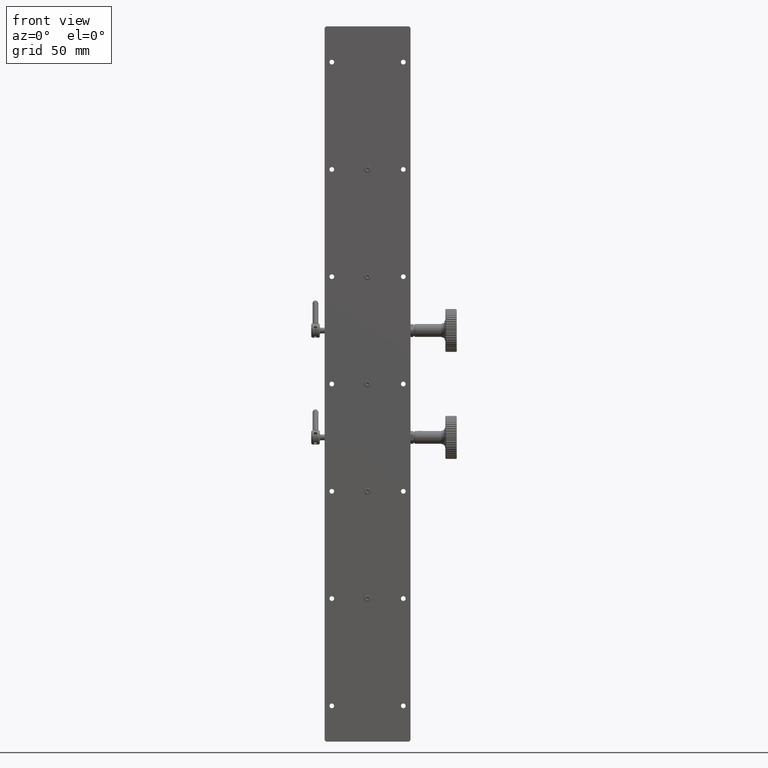
[diagram: clean part render]
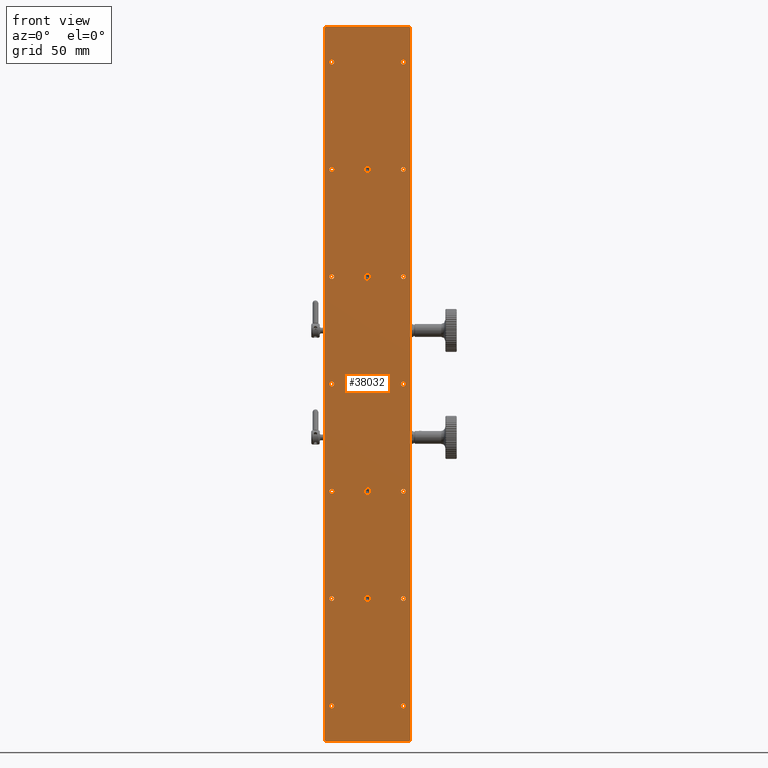
[diagram: same view with one face highlighted and labeled with its STEP entity id]
A machine part, front view. The second image highlights one B-rep face of the part: STEP entity #38032.
In plain terms, the highlighted planar face has unit normal (-0, 1, 0).
Its self-contained STEP definition (entity closure, byte-faithful):
#1663 = DIRECTION ( 'NONE',  ( -1.000000000000000000, -8.410780489584597367E-15, 0.000000000000000000 ) ) ;
#2494 = CARTESIAN_POINT ( 'NONE',  ( 37.85156960994753916, 57.10272800986749786, 413.8231807833473681 ) ) ;
#2575 = CARTESIAN_POINT ( 'NONE',  ( 34.50156960994753064, 57.10272800986749786, 512.8231807833471976 ) ) ;
#4720 = DIRECTION ( 'NONE',  ( 6.982962677686266711E-15, -1.000000000000000000, -0.000000000000000000 ) ) ;
#5114 = CIRCLE ( 'NONE', #47633, 2.500000000000002220 ) ;
#5133 = DIRECTION ( 'NONE',  ( 6.982962677686266711E-15, -1.000000000000000000, -0.000000000000000000 ) ) ;
#6536 = FACE_BOUND ( 'NONE', #180622, .T. ) ;
#7162 = CARTESIAN_POINT ( 'NONE',  ( 39.50156960994753064, 57.10272800986751207, 188.8231807833472544 ) ) ;
#7511 = DIRECTION ( 'NONE',  ( 1.000000000000000000, 8.326672684688666165E-15, 0.000000000000000000 ) ) ;
#7802 = DIRECTION ( 'NONE',  ( 6.982962677686266711E-15, -1.000000000000000000, -0.000000000000000000 ) ) ;
#8414 = CARTESIAN_POINT ( 'NONE',  ( 94.50156960994752353, 57.10272800986790998, 512.8231807833471976 ) ) ;
#8536 = CARTESIAN_POINT ( 'NONE',  ( 67.00156960994753774, 57.10272800986772523, 113.8231807833472828 ) ) ;
#8729 = VERTEX_POINT ( 'NONE', #88162 ) ;
#9557 = DIRECTION ( 'NONE',  ( 6.982962677686266711E-15, -1.000000000000000000, -0.000000000000000000 ) ) ;
#9568 = CIRCLE ( 'NONE', #51905, 2.499999999999988454 ) ;
#9812 = CARTESIAN_POINT ( 'NONE',  ( 87.85156960994756048, 57.10272800986786024, 338.8231807833472544 ) ) ;
#12876 = LINE ( 'NONE', #90626, #186220 ) ;
#13942 = DIRECTION ( 'NONE',  ( -1.000000000000000000, -6.982962677686266711E-15, 0.000000000000000000 ) ) ;
#14297 = CARTESIAN_POINT ( 'NONE',  ( 35.50156960994763011, 57.10272800986759734, 513.8231807833473113 ) ) ;
#14661 = CARTESIAN_POINT ( 'NONE',  ( 35.50156960994751643, 57.10272800986759734, 13.82318078334730060 ) ) ;
#14822 = DIRECTION ( 'NONE',  ( -1.000000000000000000, -8.410780489584597367E-15, 0.000000000000000000 ) ) ;
#14947 = LINE ( 'NONE', #167477, #19190 ) ;
#16267 = ORIENTED_EDGE ( 'NONE', *, *, #190442, .F. ) ;
#18581 = VERTEX_POINT ( 'NONE', #36961 ) ;
#19190 = VECTOR ( 'NONE', #13942, 1000.000000000000000 ) ;
#19583 = CARTESIAN_POINT ( 'NONE',  ( 67.00156960994755195, 57.10272800986772523, 338.8231807833472544 ) ) ;
#19847 = AXIS2_PLACEMENT_3D ( 'NONE', #152984, #181654, #121269 ) ;
#21101 = CARTESIAN_POINT ( 'NONE',  ( 37.85156960994754627, 57.10272800986749786, 188.8231807833472544 ) ) ;
#21535 = CARTESIAN_POINT ( 'NONE',  ( 34.50156960994753064, 57.10272800986749786, 14.82318078334733968 ) ) ;
#21704 = CARTESIAN_POINT ( 'NONE',  ( 93.50156960994743827, 57.10272800986790998, 513.8231807833473113 ) ) ;
#22867 = CARTESIAN_POINT ( 'NONE',  ( 37.85156960994753206, 57.10272800986749786, 113.8231807833472544 ) ) ;
#22869 = FACE_BOUND ( 'NONE', #81726, .T. ) ;
#22982 = VERTEX_POINT ( 'NONE', #8414 ) ;
#23298 = DIRECTION ( 'NONE',  ( 6.982962677686266711E-15, -1.000000000000000000, -0.000000000000000000 ) ) ;
#23320 = DIRECTION ( 'NONE',  ( -1.000000000000000000, -8.410780489584597367E-15, 0.000000000000000000 ) ) ;
#23882 = FACE_OUTER_BOUND ( 'NONE', #69063, .T. ) ;
#26336 = ORIENTED_EDGE ( 'NONE', *, *, #72738, .F. ) ;
#26372 = VERTEX_POINT ( 'NONE', #14661 ) ;
#29336 = ORIENTED_EDGE ( 'NONE', *, *, #82990, .F. ) ;
#31417 = CARTESIAN_POINT ( 'NONE',  ( 87.85156960994754627, 57.10272800986786024, 113.8231807833472544 ) ) ;
#32030 = DIRECTION ( 'NONE',  ( 1.000000000000000000, 8.326672684688666165E-15, 0.000000000000000000 ) ) ;
#32158 = CIRCLE ( 'NONE', #169519, 1.649999999999984812 ) ;
#32595 = CIRCLE ( 'NONE', #111031, 1.649999999999984812 ) ;
#33032 = CARTESIAN_POINT ( 'NONE',  ( 64.50156960994755195, 57.10272800986770392, 188.8231807833472544 ) ) ;
#33630 = EDGE_CURVE ( 'NONE', #121202, #8729, #127566, .T. ) ;
#34083 = EDGE_CURVE ( 'NONE', #178397, #178397, #160389, .T. ) ;
#35006 = DIRECTION ( 'NONE',  ( 6.982962677686266711E-15, -1.000000000000000000, 0.000000000000000000 ) ) ;
#35056 = VERTEX_POINT ( 'NONE', #124083 ) ;
#35862 = LINE ( 'NONE', #97251, #131454 ) ;
#35872 = ORIENTED_EDGE ( 'NONE', *, *, #159100, .F. ) ;
#36206 = CARTESIAN_POINT ( 'NONE',  ( 94.50156960994752353, 57.10272800986790998, 513.8231807833473113 ) ) ;
#36961 = CARTESIAN_POINT ( 'NONE',  ( 67.00156960994755195, 57.10272800986772523, 263.8231807833472544 ) ) ;
#38032 = ADVANCED_FACE ( 'NONE', ( #23882, #40267, #161059, #55637, #133363, #22869, #177408, #84293, #129328, #116001, #148719, #194760, #195779, #6536, #179426, #164098, #85299, #68949, #101647, #102661 ), #147699, .F. ) ;
#38984 = VERTEX_POINT ( 'NONE', #165859 ) ;
#39249 = DIRECTION ( 'NONE',  ( -6.982962677686266711E-15, 1.000000000000000000, 0.000000000000000000 ) ) ;
#39496 = CARTESIAN_POINT ( 'NONE',  ( 87.85156960994754627, 57.10272800986786024, 38.82318078334726863 ) ) ;
#40215 = CIRCLE ( 'NONE', #85922, 1.649999999999998579 ) ;
#40267 = FACE_BOUND ( 'NONE', #59314, .T. ) ;
#42006 = CIRCLE ( 'NONE', #94263, 2.500000000000002220 ) ;
#42415 = CIRCLE ( 'NONE', #114216, 1.649999999999998579 ) ;
#42525 = CARTESIAN_POINT ( 'NONE',  ( 34.50156960994753064, 57.10272800986749075, 513.8231807833473113 ) ) ;
#42845 = DIRECTION ( 'NONE',  ( 1.000000000000000000, 8.326672684688711919E-15, 0.000000000000000000 ) ) ;
#43198 = ORIENTED_EDGE ( 'NONE', *, *, #147060, .F. ) ;
#43848 = VECTOR ( 'NONE', #198429, 1000.000000000000000 ) ;
#43859 = VECTOR ( 'NONE', #137647, 1000.000000000000000 ) ;
#44269 = VERTEX_POINT ( 'NONE', #8536 ) ;
#45323 = EDGE_CURVE ( 'NONE', #26372, #95276, #12876, .T. ) ;
#46460 = VECTOR ( 'NONE', #127549, 1000.000000000000114 ) ;
#46523 = CARTESIAN_POINT ( 'NONE',  ( 89.50156960994753774, 57.10272800986787445, 113.8231807833472544 ) ) ;
#46904 = ORIENTED_EDGE ( 'NONE', *, *, #48495, .F. ) ;
#47633 = AXIS2_PLACEMENT_3D ( 'NONE', #120989, #88273, #198740 ) ;
#48495 = EDGE_CURVE ( 'NONE', #44269, #44269, #9568, .T. ) ;
#48823 = DIRECTION ( 'NONE',  ( 1.000000000000000000, 6.982962677686266711E-15, -0.000000000000000000 ) ) ;
#51008 = DIRECTION ( 'NONE',  ( 6.982962677686266711E-15, -1.000000000000000000, -0.000000000000000000 ) ) ;
#51905 = AXIS2_PLACEMENT_3D ( 'NONE', #117559, #131905, #42845 ) ;
#53347 = VERTEX_POINT ( 'NONE', #190439 ) ;
#54878 = CARTESIAN_POINT ( 'NONE',  ( 89.50156960994753774, 57.10272800986787445, 488.8231807833473113 ) ) ;
#55554 = EDGE_CURVE ( 'NONE', #182415, #182415, #42006, .T. ) ;
#55637 = FACE_BOUND ( 'NONE', #85794, .T. ) ;
#56123 = AXIS2_PLACEMENT_3D ( 'NONE', #33032, #141498, #32030 ) ;
#58905 = VERTEX_POINT ( 'NONE', #137659 ) ;
#59314 = EDGE_LOOP ( 'NONE', ( #46904 ) ) ;
#61024 = EDGE_LOOP ( 'NONE', ( #192427 ) ) ;
#61113 = ORIENTED_EDGE ( 'NONE', *, *, #33630, .F. ) ;
#61152 = EDGE_LOOP ( 'NONE', ( #182795 ) ) ;
#61909 = LINE ( 'NONE', #42525, #43859 ) ;
#62884 = DIRECTION ( 'NONE',  ( -1.000000000000000000, -8.410780489584526369E-15, 0.000000000000000000 ) ) ;
#63078 = CARTESIAN_POINT ( 'NONE',  ( 89.50156960994753774, 57.10272800986787445, 263.8231807833472544 ) ) ;
#63896 = DIRECTION ( 'NONE',  ( 6.982962677686266711E-15, -1.000000000000000000, -0.000000000000000000 ) ) ;
#64184 = ORIENTED_EDGE ( 'NONE', *, *, #87833, .F. ) ;
#64580 = ORIENTED_EDGE ( 'NONE', *, *, #167910, .F. ) ;
#66442 = AXIS2_PLACEMENT_3D ( 'NONE', #85278, #9557, #103652 ) ;
#66787 = AXIS2_PLACEMENT_3D ( 'NONE', #84253, #181400, #7511 ) ;
#67186 = CARTESIAN_POINT ( 'NONE',  ( 94.50156960994752353, 57.10272800986790998, 513.8231807833473113 ) ) ;
#67668 = VERTEX_POINT ( 'NONE', #132096 ) ;
#67938 = DIRECTION ( 'NONE',  ( -1.000000000000000000, -6.982962677686266711E-15, 0.000000000000000000 ) ) ;
#67986 = EDGE_CURVE ( 'NONE', #109652, #26372, #14947, .T. ) ;
#68949 = FACE_BOUND ( 'NONE', #115140, .T. ) ;
#68961 = EDGE_LOOP ( 'NONE', ( #73486 ) ) ;
#69063 = EDGE_LOOP ( 'NONE', ( #26336, #100357, #124024, #61113, #165581, #175777, #172084, #83488 ) ) ;
#71221 = CARTESIAN_POINT ( 'NONE',  ( 37.85156960994753916, 57.10272800986749786, 338.8231807833472544 ) ) ;
#72442 = CARTESIAN_POINT ( 'NONE',  ( 89.50156960994753774, 57.10272800986787445, 188.8231807833472544 ) ) ;
#72738 = EDGE_CURVE ( 'NONE', #35056, #109652, #121687, .T. ) ;
#73486 = ORIENTED_EDGE ( 'NONE', *, *, #121941, .F. ) ;
#73698 = ORIENTED_EDGE ( 'NONE', *, *, #55554, .F. ) ;
#74351 = EDGE_CURVE ( 'NONE', #53347, #53347, #174578, .T. ) ;
#77932 = EDGE_CURVE ( 'NONE', #67668, #67668, #191019, .T. ) ;
#81467 = DIRECTION ( 'NONE',  ( -1.000000000000000000, -8.410780489584597367E-15, 0.000000000000000000 ) ) ;
#81726 = EDGE_LOOP ( 'NONE', ( #64184 ) ) ;
#81989 = ORIENTED_EDGE ( 'NONE', *, *, #141108, .F. ) ;
#82990 = EDGE_CURVE ( 'NONE', #179159, #179159, #5114, .T. ) ;
#83488 = ORIENTED_EDGE ( 'NONE', *, *, #67986, .F. ) ;
#84131 = DIRECTION ( 'NONE',  ( -0.7071067811865474617, 0.000000000000000000, 0.7071067811865474617 ) ) ;
#84253 = CARTESIAN_POINT ( 'NONE',  ( 64.50156960994755195, 57.10272800986770392, 263.8231807833472544 ) ) ;
#84293 = FACE_BOUND ( 'NONE', #127744, .T. ) ;
#85278 = CARTESIAN_POINT ( 'NONE',  ( 39.50156960994751643, 57.10272800986751207, 488.8231807833473113 ) ) ;
#85299 = FACE_BOUND ( 'NONE', #126300, .T. ) ;
#85794 = EDGE_LOOP ( 'NONE', ( #73698 ) ) ;
#85922 = AXIS2_PLACEMENT_3D ( 'NONE', #132788, #148147, #178861 ) ;
#86321 = AXIS2_PLACEMENT_3D ( 'NONE', #156996, #106910, #184665 ) ;
#87833 = EDGE_CURVE ( 'NONE', #18581, #18581, #184490, .T. ) ;
#88162 = CARTESIAN_POINT ( 'NONE',  ( 93.50156960994742406, 57.10272800986790287, 513.8231807833473113 ) ) ;
#88273 = DIRECTION ( 'NONE',  ( 6.982962677686266711E-15, -1.000000000000000000, 0.000000000000000000 ) ) ;
#90626 = CARTESIAN_POINT ( 'NONE',  ( 34.50156960994753064, 57.10272800986749786, 14.82318078334733613 ) ) ;
#91794 = AXIS2_PLACEMENT_3D ( 'NONE', #187670, #63896, #14822 ) ;
#94263 = AXIS2_PLACEMENT_3D ( 'NONE', #192540, #35006, #129134 ) ;
#95276 = VERTEX_POINT ( 'NONE', #21535 ) ;
#96807 = CARTESIAN_POINT ( 'NONE',  ( 39.50156960994752353, 57.10272800986751207, 338.8231807833472544 ) ) ;
#96983 = ORIENTED_EDGE ( 'NONE', *, *, #34083, .F. ) ;
#97239 = ORIENTED_EDGE ( 'NONE', *, *, #77932, .F. ) ;
#97251 = CARTESIAN_POINT ( 'NONE',  ( 94.50156960994752353, 57.10272800986790998, 513.8231807833473113 ) ) ;
#97821 = EDGE_CURVE ( 'NONE', #95276, #157293, #61909, .T. ) ;
#98262 = DIRECTION ( 'NONE',  ( -0.000000000000000000, -0.000000000000000000, -1.000000000000000000 ) ) ;
#98611 = VERTEX_POINT ( 'NONE', #114970 ) ;
#98813 = CARTESIAN_POINT ( 'NONE',  ( 89.50156960994753774, 57.10272800986787445, 38.82318078334726863 ) ) ;
#99094 = EDGE_LOOP ( 'NONE', ( #121983 ) ) ;
#100357 = ORIENTED_EDGE ( 'NONE', *, *, #112990, .F. ) ;
#101061 = DIRECTION ( 'NONE',  ( -1.000000000000000000, -8.410780489584597367E-15, 0.000000000000000000 ) ) ;
#101571 = CIRCLE ( 'NONE', #91794, 1.649999999999984812 ) ;
#101647 = FACE_BOUND ( 'NONE', #170748, .T. ) ;
#101903 = VERTEX_POINT ( 'NONE', #71221 ) ;
#102661 = FACE_BOUND ( 'NONE', #99094, .T. ) ;
#103652 = DIRECTION ( 'NONE',  ( -1.000000000000000000, -8.410780489584597367E-15, 0.000000000000000000 ) ) ;
#104902 = CIRCLE ( 'NONE', #19847, 1.649999999999998579 ) ;
#105365 = CIRCLE ( 'NONE', #144452, 1.649999999999984812 ) ;
#106910 = DIRECTION ( 'NONE',  ( 6.982962677686266711E-15, -1.000000000000000000, -0.000000000000000000 ) ) ;
#106949 = VERTEX_POINT ( 'NONE', #170395 ) ;
#108117 = VECTOR ( 'NONE', #48823, 1000.000000000000000 ) ;
#108234 = CIRCLE ( 'NONE', #124611, 1.649999999999984812 ) ;
#108426 = EDGE_CURVE ( 'NONE', #38984, #38984, #124622, .T. ) ;
#109453 = EDGE_CURVE ( 'NONE', #22982, #8729, #161923, .T. ) ;
#109652 = VERTEX_POINT ( 'NONE', #165964 ) ;
#109968 = EDGE_LOOP ( 'NONE', ( #181380 ) ) ;
#110185 = CARTESIAN_POINT ( 'NONE',  ( 35.50156960994764432, 57.10272800986749786, 513.8231807833473113 ) ) ;
#111031 = AXIS2_PLACEMENT_3D ( 'NONE', #162514, #51008, #23320 ) ;
#112990 = EDGE_CURVE ( 'NONE', #22982, #35056, #35862, .T. ) ;
#113203 = VERTEX_POINT ( 'NONE', #125563 ) ;
#114203 = VERTEX_POINT ( 'NONE', #9812 ) ;
#114216 = AXIS2_PLACEMENT_3D ( 'NONE', #98813, #4720, #192936 ) ;
#114934 = VECTOR ( 'NONE', #84131, 1000.000000000000114 ) ;
#114970 = CARTESIAN_POINT ( 'NONE',  ( 87.85156960994756048, 57.10272800986786024, 263.8231807833472544 ) ) ;
#115124 = EDGE_LOOP ( 'NONE', ( #29336 ) ) ;
#115140 = EDGE_LOOP ( 'NONE', ( #43198 ) ) ;
#115970 = CARTESIAN_POINT ( 'NONE',  ( 87.85156960994756048, 57.10272800986786024, 488.8231807833473113 ) ) ;
#116001 = FACE_BOUND ( 'NONE', #179578, .T. ) ;
#117261 = DIRECTION ( 'NONE',  ( -1.000000000000000000, -8.410780489584597367E-15, 0.000000000000000000 ) ) ;
#117559 = CARTESIAN_POINT ( 'NONE',  ( 64.50156960994755195, 57.10272800986770392, 113.8231807833472828 ) ) ;
#120989 = CARTESIAN_POINT ( 'NONE',  ( 64.50156960994755195, 57.10272800986770392, 338.8231807833472544 ) ) ;
#121202 = VERTEX_POINT ( 'NONE', #14297 ) ;
#121269 = DIRECTION ( 'NONE',  ( -1.000000000000000000, -8.410780489584526369E-15, 0.000000000000000000 ) ) ;
#121687 = LINE ( 'NONE', #197420, #43848 ) ;
#121941 = EDGE_CURVE ( 'NONE', #113203, #113203, #104902, .T. ) ;
#121983 = ORIENTED_EDGE ( 'NONE', *, *, #140736, .F. ) ;
#122994 = EDGE_CURVE ( 'NONE', #141900, #141900, #157202, .T. ) ;
#124024 = ORIENTED_EDGE ( 'NONE', *, *, #109453, .T. ) ;
#124083 = CARTESIAN_POINT ( 'NONE',  ( 94.50156960994752353, 57.10272800986790287, 14.82318078334727396 ) ) ;
#124611 = AXIS2_PLACEMENT_3D ( 'NONE', #72442, #134830, #187655 ) ;
#124622 = CIRCLE ( 'NONE', #56123, 2.500000000000002220 ) ;
#125563 = CARTESIAN_POINT ( 'NONE',  ( 37.85156960994753206, 57.10272800986749786, 38.82318078334728284 ) ) ;
#126300 = EDGE_LOOP ( 'NONE', ( #194221 ) ) ;
#127549 = DIRECTION ( 'NONE',  ( -0.7071067811865474617, 0.000000000000000000, -0.7071067811865474617 ) ) ;
#127566 = LINE ( 'NONE', #67186, #108117 ) ;
#127744 = EDGE_LOOP ( 'NONE', ( #96983 ) ) ;
#129134 = DIRECTION ( 'NONE',  ( 1.000000000000000000, 8.326672684688666165E-15, 0.000000000000000000 ) ) ;
#129328 = FACE_BOUND ( 'NONE', #68961, .T. ) ;
#130882 = EDGE_CURVE ( 'NONE', #165352, #165352, #32158, .T. ) ;
#131454 = VECTOR ( 'NONE', #98262, 1000.000000000000000 ) ;
#131905 = DIRECTION ( 'NONE',  ( 6.982962677686266711E-15, -1.000000000000000000, 0.000000000000000000 ) ) ;
#132096 = CARTESIAN_POINT ( 'NONE',  ( 37.85156960994753916, 57.10272800986749786, 263.8231807833472544 ) ) ;
#132788 = CARTESIAN_POINT ( 'NONE',  ( 39.50156960994753064, 57.10272800986751207, 113.8231807833472544 ) ) ;
#133363 = FACE_BOUND ( 'NONE', #115124, .T. ) ;
#134830 = DIRECTION ( 'NONE',  ( 6.982962677686266711E-15, -1.000000000000000000, -0.000000000000000000 ) ) ;
#137647 = DIRECTION ( 'NONE',  ( 0.000000000000000000, 0.000000000000000000, 1.000000000000000000 ) ) ;
#137659 = CARTESIAN_POINT ( 'NONE',  ( 87.85156960994756048, 57.10272800986786024, 188.8231807833472544 ) ) ;
#139203 = EDGE_CURVE ( 'NONE', #114203, #114203, #32595, .T. ) ;
#140627 = DIRECTION ( 'NONE',  ( 6.982962677686266711E-15, -1.000000000000000000, -0.000000000000000000 ) ) ;
#140736 = EDGE_CURVE ( 'NONE', #179674, #179674, #42415, .T. ) ;
#141108 = EDGE_CURVE ( 'NONE', #101903, #101903, #191785, .T. ) ;
#141498 = DIRECTION ( 'NONE',  ( 6.982962677686266711E-15, -1.000000000000000000, 0.000000000000000000 ) ) ;
#141900 = VERTEX_POINT ( 'NONE', #31417 ) ;
#144452 = AXIS2_PLACEMENT_3D ( 'NONE', #63078, #187868, #1663 ) ;
#147060 = EDGE_CURVE ( 'NONE', #58905, #58905, #108234, .T. ) ;
#147699 = PLANE ( 'NONE',  #176160 ) ;
#148147 = DIRECTION ( 'NONE',  ( 6.982962677686266711E-15, -1.000000000000000000, -0.000000000000000000 ) ) ;
#148719 = FACE_BOUND ( 'NONE', #176578, .T. ) ;
#152026 = EDGE_LOOP ( 'NONE', ( #35872 ) ) ;
#152984 = CARTESIAN_POINT ( 'NONE',  ( 39.50156960994753064, 57.10272800986751207, 38.82318078334728284 ) ) ;
#153188 = EDGE_CURVE ( 'NONE', #121202, #157293, #185936, .T. ) ;
#156996 = CARTESIAN_POINT ( 'NONE',  ( 89.50156960994753774, 57.10272800986787445, 413.8231807833473681 ) ) ;
#157202 = CIRCLE ( 'NONE', #186503, 1.649999999999998579 ) ;
#157293 = VERTEX_POINT ( 'NONE', #2575 ) ;
#159036 = VERTEX_POINT ( 'NONE', #2494 ) ;
#159100 = EDGE_CURVE ( 'NONE', #106949, #106949, #161257, .T. ) ;
#159243 = DIRECTION ( 'NONE',  ( 6.982962677686266711E-15, -1.000000000000000000, -0.000000000000000000 ) ) ;
#160389 = CIRCLE ( 'NONE', #186501, 1.649999999999984812 ) ;
#161059 = FACE_BOUND ( 'NONE', #61024, .T. ) ;
#161257 = CIRCLE ( 'NONE', #66442, 1.649999999999984812 ) ;
#161923 = LINE ( 'NONE', #21704, #114934 ) ;
#162490 = CARTESIAN_POINT ( 'NONE',  ( 39.50156960994752353, 57.10272800986751207, 263.8231807833472544 ) ) ;
#162514 = CARTESIAN_POINT ( 'NONE',  ( 89.50156960994753774, 57.10272800986787445, 338.8231807833472544 ) ) ;
#163267 = EDGE_LOOP ( 'NONE', ( #97239 ) ) ;
#164098 = FACE_BOUND ( 'NONE', #109968, .T. ) ;
#165086 = CARTESIAN_POINT ( 'NONE',  ( 67.00156960994755195, 57.10272800986772523, 413.8231807833473113 ) ) ;
#165352 = VERTEX_POINT ( 'NONE', #21101 ) ;
#165581 = ORIENTED_EDGE ( 'NONE', *, *, #153188, .T. ) ;
#165717 = AXIS2_PLACEMENT_3D ( 'NONE', #96807, #159243, #81467 ) ;
#165859 = CARTESIAN_POINT ( 'NONE',  ( 67.00156960994755195, 57.10272800986772523, 188.8231807833472544 ) ) ;
#165964 = CARTESIAN_POINT ( 'NONE',  ( 93.50156960994750932, 57.10272800986790287, 13.82318078334728462 ) ) ;
#167477 = CARTESIAN_POINT ( 'NONE',  ( 94.50156960994752353, 57.10272800986790998, 13.82318078334732192 ) ) ;
#167807 = ORIENTED_EDGE ( 'NONE', *, *, #122994, .F. ) ;
#167910 = EDGE_CURVE ( 'NONE', #159036, #159036, #101571, .T. ) ;
#169519 = AXIS2_PLACEMENT_3D ( 'NONE', #7162, #5133, #176003 ) ;
#170395 = CARTESIAN_POINT ( 'NONE',  ( 37.85156960994753206, 57.10272800986749786, 488.8231807833473113 ) ) ;
#170748 = EDGE_LOOP ( 'NONE', ( #167807 ) ) ;
#172084 = ORIENTED_EDGE ( 'NONE', *, *, #45323, .F. ) ;
#174578 = CIRCLE ( 'NONE', #86321, 1.649999999999984812 ) ;
#175777 = ORIENTED_EDGE ( 'NONE', *, *, #97821, .F. ) ;
#176003 = DIRECTION ( 'NONE',  ( -1.000000000000000000, -8.410780489584597367E-15, 0.000000000000000000 ) ) ;
#176160 = AXIS2_PLACEMENT_3D ( 'NONE', #36206, #39249, #67938 ) ;
#176578 = EDGE_LOOP ( 'NONE', ( #177115 ) ) ;
#177115 = ORIENTED_EDGE ( 'NONE', *, *, #130882, .F. ) ;
#177408 = FACE_BOUND ( 'NONE', #152026, .T. ) ;
#178397 = VERTEX_POINT ( 'NONE', #115970 ) ;
#178861 = DIRECTION ( 'NONE',  ( -1.000000000000000000, -8.410780489584526369E-15, 0.000000000000000000 ) ) ;
#179159 = VERTEX_POINT ( 'NONE', #19583 ) ;
#179426 = FACE_BOUND ( 'NONE', #61152, .T. ) ;
#179578 = EDGE_LOOP ( 'NONE', ( #16267 ) ) ;
#179674 = VERTEX_POINT ( 'NONE', #39496 ) ;
#180622 = EDGE_LOOP ( 'NONE', ( #64580 ) ) ;
#181380 = ORIENTED_EDGE ( 'NONE', *, *, #139203, .F. ) ;
#181400 = DIRECTION ( 'NONE',  ( 6.982962677686266711E-15, -1.000000000000000000, 0.000000000000000000 ) ) ;
#181654 = DIRECTION ( 'NONE',  ( 6.982962677686266711E-15, -1.000000000000000000, -0.000000000000000000 ) ) ;
#182415 = VERTEX_POINT ( 'NONE', #165086 ) ;
#182795 = ORIENTED_EDGE ( 'NONE', *, *, #74351, .F. ) ;
#184490 = CIRCLE ( 'NONE', #66787, 2.500000000000002220 ) ;
#184635 = AXIS2_PLACEMENT_3D ( 'NONE', #162490, #23298, #101061 ) ;
#184665 = DIRECTION ( 'NONE',  ( -1.000000000000000000, -8.410780489584597367E-15, 0.000000000000000000 ) ) ;
#185936 = LINE ( 'NONE', #110185, #46460 ) ;
#186167 = EDGE_CURVE ( 'NONE', #98611, #98611, #105365, .T. ) ;
#186220 = VECTOR ( 'NONE', #200099, 1000.000000000000000 ) ;
#186501 = AXIS2_PLACEMENT_3D ( 'NONE', #54878, #7802, #117261 ) ;
#186503 = AXIS2_PLACEMENT_3D ( 'NONE', #46523, #140627, #62884 ) ;
#187655 = DIRECTION ( 'NONE',  ( -1.000000000000000000, -8.410780489584597367E-15, 0.000000000000000000 ) ) ;
#187670 = CARTESIAN_POINT ( 'NONE',  ( 39.50156960994752353, 57.10272800986751207, 413.8231807833473681 ) ) ;
#187868 = DIRECTION ( 'NONE',  ( 6.982962677686266711E-15, -1.000000000000000000, -0.000000000000000000 ) ) ;
#190439 = CARTESIAN_POINT ( 'NONE',  ( 87.85156960994756048, 57.10272800986786024, 413.8231807833473681 ) ) ;
#190442 = EDGE_CURVE ( 'NONE', #193743, #193743, #40215, .T. ) ;
#191019 = CIRCLE ( 'NONE', #184635, 1.649999999999984812 ) ;
#191785 = CIRCLE ( 'NONE', #165717, 1.649999999999984812 ) ;
#192427 = ORIENTED_EDGE ( 'NONE', *, *, #108426, .F. ) ;
#192540 = CARTESIAN_POINT ( 'NONE',  ( 64.50156960994755195, 57.10272800986770392, 413.8231807833473113 ) ) ;
#192936 = DIRECTION ( 'NONE',  ( -1.000000000000000000, -8.410780489584526369E-15, 0.000000000000000000 ) ) ;
#193743 = VERTEX_POINT ( 'NONE', #22867 ) ;
#194221 = ORIENTED_EDGE ( 'NONE', *, *, #186167, .F. ) ;
#194760 = FACE_BOUND ( 'NONE', #163267, .T. ) ;
#195779 = FACE_BOUND ( 'NONE', #197277, .T. ) ;
#197277 = EDGE_LOOP ( 'NONE', ( #81989 ) ) ;
#197420 = CARTESIAN_POINT ( 'NONE',  ( 94.50156960994752353, 57.10272800986790287, 14.82318078334731126 ) ) ;
#198429 = DIRECTION ( 'NONE',  ( -0.7071067811865279218, 0.000000000000000000, -0.7071067811865672237 ) ) ;
#198740 = DIRECTION ( 'NONE',  ( 1.000000000000000000, 8.326672684688666165E-15, 0.000000000000000000 ) ) ;
#200099 = DIRECTION ( 'NONE',  ( -0.7071067811865279218, 0.000000000000000000, 0.7071067811865672237 ) ) ;